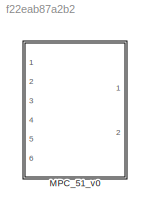
MODEL slx_f22eab87a2b2
KIND library
CONFIG AbsTol = auto
CONFIG EnableMultiTasking = off
CONFIG FixedStep = auto
CONFIG MaxStep = auto
CONFIG MinStep = auto
CONFIG RelTol = 1e-3
CONFIG SampleTimeConstraint = Unconstrained
CONFIG Solver = VariableStepAuto
CONFIG SolverName = VariableStepAuto
CONFIG StartTime = 0.0
CONFIG StopTime = 10.0
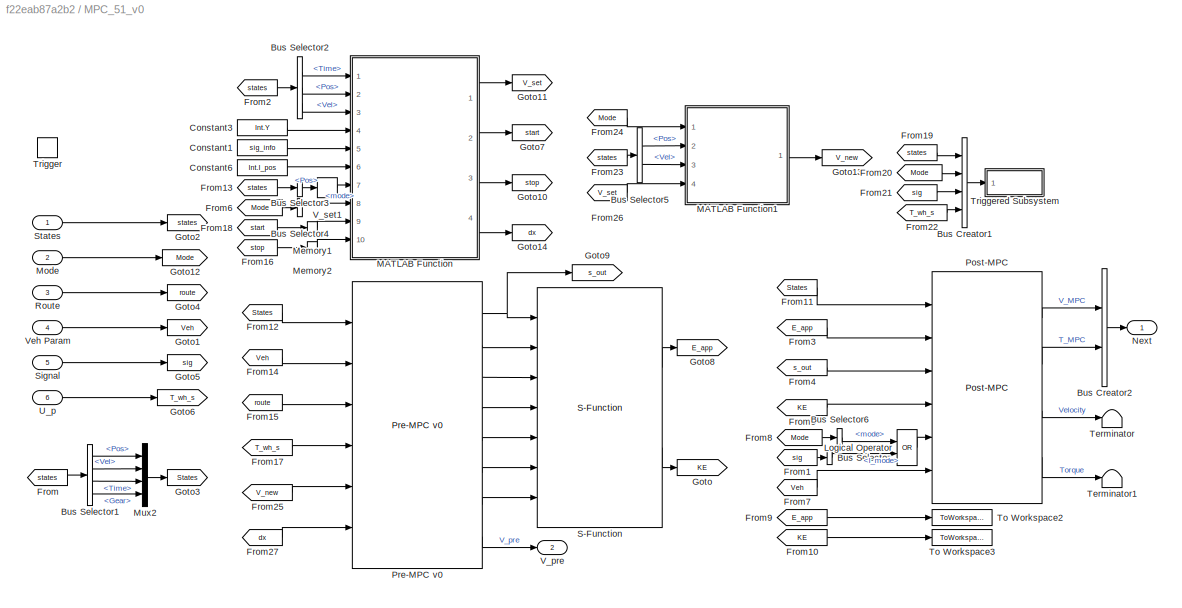
BLOCK [SubSystem] MPC_51_v0
  Ports = [6, 2, 0, 1]
  RequestExecContextInheritance = off
  TreatAsAtomicUnit = on
BLOCK [BusCreator] MPC_51_v0/Bus Creator1
  DisplayOption = bar
  InheritFromInputs = on
  Inputs = 4
  Ports = [4, 1]
BLOCK [BusCreator] MPC_51_v0/Bus Creator2
  DisplayOption = bar
  InheritFromInputs = on
  Inputs = 2
  Ports = [2, 1]
BLOCK [BusSelector] MPC_51_v0/Bus Selector
  OutputSignals = I_mode
  Ports = [1, 1]
BLOCK [BusSelector] MPC_51_v0/Bus Selector1
  OutputSignals = Pos,Vel,Time,Gear
  Ports = [1, 4]
BLOCK [BusSelector] MPC_51_v0/Bus Selector2
  OutputSignals = Time,Pos,Vel
  Ports = [1, 3]
BLOCK [BusSelector] MPC_51_v0/Bus Selector3
  OutputSignals = Pos
  Ports = [1, 1]
BLOCK [BusSelector] MPC_51_v0/Bus Selector4
  OutputSignals = mode
  Ports = [1, 1]
BLOCK [BusSelector] MPC_51_v0/Bus Selector5
  OutputSignals = Pos,Vel
  Ports = [1, 2]
BLOCK [BusSelector] MPC_51_v0/Bus Selector6
  OutputSignals = mode
  Ports = [1, 1]
BLOCK [Constant] MPC_51_v0/Constant1
  Value = sig_info
BLOCK [Constant] MPC_51_v0/Constant3
  Value = Int.Y
BLOCK [Constant] MPC_51_v0/Constant6
  Value = Int.I_pos
BLOCK [From] MPC_51_v0/From
  GotoTag = states
BLOCK [From] MPC_51_v0/From1
  GotoTag = sig
BLOCK [From] MPC_51_v0/From10
  GotoTag = KE
BLOCK [From] MPC_51_v0/From11
  GotoTag = States
BLOCK [From] MPC_51_v0/From12
  GotoTag = States
BLOCK [From] MPC_51_v0/From13
  GotoTag = states
BLOCK [From] MPC_51_v0/From14
  GotoTag = Veh
BLOCK [From] MPC_51_v0/From15
  GotoTag = route
BLOCK [From] MPC_51_v0/From16
  GotoTag = stop
BLOCK [From] MPC_51_v0/From17
  GotoTag = T_wh_s
BLOCK [From] MPC_51_v0/From18
  GotoTag = start
BLOCK [From] MPC_51_v0/From19
  GotoTag = states
BLOCK [From] MPC_51_v0/From2
  GotoTag = states
BLOCK [From] MPC_51_v0/From20
  GotoTag = Mode
BLOCK [From] MPC_51_v0/From21
  GotoTag = sig
BLOCK [From] MPC_51_v0/From22
  GotoTag = T_wh_s
BLOCK [From] MPC_51_v0/From23
  GotoTag = states
BLOCK [From] MPC_51_v0/From24
  GotoTag = Mode
BLOCK [From] MPC_51_v0/From25
  GotoTag = V_new
BLOCK [From] MPC_51_v0/From26
  GotoTag = V_set
BLOCK [From] MPC_51_v0/From27
  GotoTag = dx
BLOCK [From] MPC_51_v0/From3
  GotoTag = E_app
BLOCK [From] MPC_51_v0/From4
  GotoTag = s_out
BLOCK [From] MPC_51_v0/From5
  GotoTag = KE
BLOCK [From] MPC_51_v0/From6
  GotoTag = Mode
BLOCK [From] MPC_51_v0/From7
  GotoTag = Veh
BLOCK [From] MPC_51_v0/From8
  GotoTag = Mode
BLOCK [From] MPC_51_v0/From9
  GotoTag = E_app
BLOCK [Goto] MPC_51_v0/Goto
  GotoTag = KE
BLOCK [Goto] MPC_51_v0/Goto1
  GotoTag = Veh
BLOCK [Goto] MPC_51_v0/Goto10
  GotoTag = stop
BLOCK [Goto] MPC_51_v0/Goto11
  GotoTag = V_set
BLOCK [Goto] MPC_51_v0/Goto12
  GotoTag = Mode
BLOCK [Goto] MPC_51_v0/Goto13
  GotoTag = V_new
BLOCK [Goto] MPC_51_v0/Goto14
  GotoTag = dx
BLOCK [Goto] MPC_51_v0/Goto2
  GotoTag = states
BLOCK [Goto] MPC_51_v0/Goto3
  GotoTag = States
BLOCK [Goto] MPC_51_v0/Goto4
  GotoTag = route
BLOCK [Goto] MPC_51_v0/Goto5
  GotoTag = sig
BLOCK [Goto] MPC_51_v0/Goto6
  GotoTag = T_wh_s
BLOCK [Goto] MPC_51_v0/Goto7
  GotoTag = start
BLOCK [Goto] MPC_51_v0/Goto8
  GotoTag = E_app
BLOCK [Goto] MPC_51_v0/Goto9
  GotoTag = s_out
BLOCK [Logic] MPC_51_v0/Logical Operator
  AllPortsSameDT = off
  Operator = OR
  OutDataTypeStr = boolean
  Ports = [2, 1]
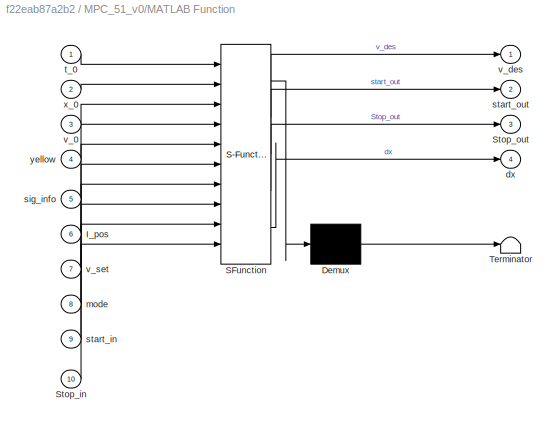
BLOCK [SubSystem] MPC_51_v0/MATLAB Function
  ErrorFcn = Stateflow.Translate.translate
  PermitHierarchicalResolution = ExplicitOnly
  Ports = [10, 4]
  RequestExecContextInheritance = off
  SFBlockType = MATLAB Function
  TreatAsAtomicUnit = on
BLOCK [Demux] MPC_51_v0/MATLAB Function/ Demux 
  Outputs = 1
  Ports = [1, 1]
BLOCK [S-Function] MPC_51_v0/MATLAB Function/ SFunction 
  EnableBusSupport = off
  FunctionName = sf_sfun
  PortCounts = [10 5]
  Ports = [10, 5]
  SFcnIsStateOwnerBlock = off
  SFunctionDeploymentMode = off
  Tag = Stateflow S-Function 2
BLOCK [Terminator] MPC_51_v0/MATLAB Function/ Terminator 
BLOCK [Inport] MPC_51_v0/MATLAB Function/I_pos
  Port = 6
BLOCK [Inport] MPC_51_v0/MATLAB Function/Stop_in
  Port = 10
BLOCK [Outport] MPC_51_v0/MATLAB Function/Stop_out
  Port = 3
BLOCK [Outport] MPC_51_v0/MATLAB Function/dx
  Port = 4
BLOCK [Inport] MPC_51_v0/MATLAB Function/mode
  Port = 8
BLOCK [Inport] MPC_51_v0/MATLAB Function/sig_info
  Port = 5
BLOCK [Inport] MPC_51_v0/MATLAB Function/start_in
  Port = 9
BLOCK [Outport] MPC_51_v0/MATLAB Function/start_out
  Port = 2
BLOCK [Inport] MPC_51_v0/MATLAB Function/t_0
BLOCK [Inport] MPC_51_v0/MATLAB Function/v_0
  Port = 3
BLOCK [Outport] MPC_51_v0/MATLAB Function/v_des
BLOCK [Inport] MPC_51_v0/MATLAB Function/v_set
  Port = 7
BLOCK [Inport] MPC_51_v0/MATLAB Function/x_0
  Port = 2
BLOCK [Inport] MPC_51_v0/MATLAB Function/yellow
  Port = 4
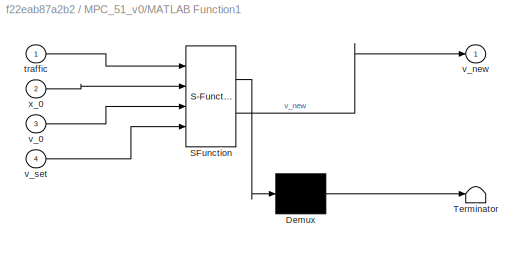
BLOCK [SubSystem] MPC_51_v0/MATLAB Function1
  ErrorFcn = Stateflow.Translate.translate
  PermitHierarchicalResolution = ExplicitOnly
  Ports = [4, 1]
  RequestExecContextInheritance = off
  SFBlockType = MATLAB Function
  TreatAsAtomicUnit = on
BLOCK [Demux] MPC_51_v0/MATLAB Function1/ Demux 
  Outputs = 1
  Ports = [1, 1]
BLOCK [S-Function] MPC_51_v0/MATLAB Function1/ SFunction 
  EnableBusSupport = off
  FunctionName = sf_sfun
  PortCounts = [4 2]
  Ports = [4, 2]
  SFcnIsStateOwnerBlock = off
  SFunctionDeploymentMode = off
  Tag = Stateflow S-Function 1
BLOCK [Terminator] MPC_51_v0/MATLAB Function1/ Terminator 
BLOCK [Inport] MPC_51_v0/MATLAB Function1/traffic
BLOCK [Inport] MPC_51_v0/MATLAB Function1/v_0
  Port = 3
BLOCK [Outport] MPC_51_v0/MATLAB Function1/v_new
BLOCK [Inport] MPC_51_v0/MATLAB Function1/v_set
  Port = 4
BLOCK [Inport] MPC_51_v0/MATLAB Function1/x_0
  Port = 2
BLOCK [Memory] MPC_51_v0/Memory1
  InheritSampleTime = on
  InitialCondition = [0 0]
BLOCK [Memory] MPC_51_v0/Memory2
  InheritSampleTime = on
BLOCK [Inport] MPC_51_v0/Mode
  Port = 2
BLOCK [Mux] MPC_51_v0/Mux2
  DisplayOption = bar
  Ports = [4, 1]
BLOCK [Outport] MPC_51_v0/Next
  VectorParamsAs1DForOutWhenUnconnected = off
BLOCK [Reference] MPC_51_v0/Post-MPC  REF=MPC_Sublibraries/Post-MPC
  Ports = [6, 4]
  SourceBlock = MPC_Sublibraries/Post-MPC
BLOCK [Reference] MPC_51_v0/Pre-MPC v0  REF=MPC_Sublibraries/Pre-MPC v0
  Ports = [6, 8]
  SourceBlock = MPC_Sublibraries/Pre-MPC v0
BLOCK [Inport] MPC_51_v0/Route
  Port = 3
BLOCK [Reference] MPC_51_v0/S-Function  REF=MPC_Sublibraries/S-Function
  Ports = [7, 2]
  SourceBlock = MPC_Sublibraries/S-Function
BLOCK [Inport] MPC_51_v0/Signal
  Port = 5
BLOCK [Inport] MPC_51_v0/States
BLOCK [Terminator] MPC_51_v0/Terminator
BLOCK [Terminator] MPC_51_v0/Terminator1
BLOCK [ToWorkspace] MPC_51_v0/To Workspace2
  FixptAsFi = on
  MaxDataPoints = inf
  Ports = [1]
  SampleTime = -1
  VariableName = E_app
BLOCK [ToWorkspace] MPC_51_v0/To Workspace3
  FixptAsFi = on
  MaxDataPoints = inf
  Ports = [1]
  SampleTime = -1
  VariableName = KE
BLOCK [TriggerPort] MPC_51_v0/Trigger
  Ports = []
  StatesWhenEnabling = held
  TriggerType = falling
  VariantControl = Variant
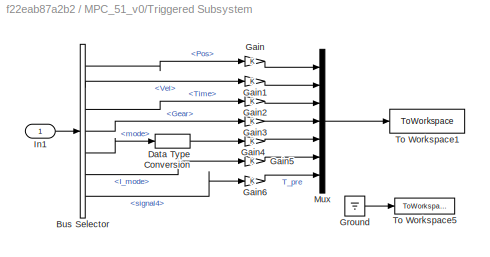
BLOCK [SubSystem] MPC_51_v0/Triggered Subsystem
  Ports = [1]
  RequestExecContextInheritance = off
  TreatAsAtomicUnit = on
BLOCK [BusSelector] MPC_51_v0/Triggered Subsystem/Bus Selector
  OutputSignals = signal1.Pos,signal1.Vel,signal1.Time,signal1.Gear,Traffic.mode,signal3.I_mode,signal4
  Ports = [1, 7]
BLOCK [DataTypeConversion] MPC_51_v0/Triggered Subsystem/Data Type Conversion
  OutDataTypeStr = double
  RndMeth = Floor
  SaturateOnIntegerOverflow = off
BLOCK [Gain] MPC_51_v0/Triggered Subsystem/Gain
BLOCK [Gain] MPC_51_v0/Triggered Subsystem/Gain1
BLOCK [Gain] MPC_51_v0/Triggered Subsystem/Gain2
BLOCK [Gain] MPC_51_v0/Triggered Subsystem/Gain3
BLOCK [Gain] MPC_51_v0/Triggered Subsystem/Gain4
BLOCK [Gain] MPC_51_v0/Triggered Subsystem/Gain5
BLOCK [Gain] MPC_51_v0/Triggered Subsystem/Gain6
BLOCK [Ground] MPC_51_v0/Triggered Subsystem/Ground
BLOCK [Inport] MPC_51_v0/Triggered Subsystem/In1
BLOCK [Mux] MPC_51_v0/Triggered Subsystem/Mux
  DisplayOption = bar
  Inputs = 7
  Ports = [7, 1]
BLOCK [ToWorkspace] MPC_51_v0/Triggered Subsystem/To Workspace1
  MaxDataPoints = inf
  Ports = [1]
  SampleTime = -1
  SaveFormat = Structure With Time
  VariableName = MPC_input
BLOCK [ToWorkspace] MPC_51_v0/Triggered Subsystem/To Workspace5
  MaxDataPoints = inf
  Ports = [1]
  SampleTime = -1
  VariableName = GP_out
BLOCK [Inport] MPC_51_v0/U_p
  Port = 6
BLOCK [Outport] MPC_51_v0/V_pre
  Port = 2
  VectorParamsAs1DForOutWhenUnconnected = off
BLOCK [Lookup_n-D] MPC_51_v0/V_set1
  BreakpointsForDimension1 = UNCC.X_vec
  ExtrapMethod = Clip
  InterpMethod = Flat
  NumberOfTableDimensions = 1
  Ports = [1, 1]
  Table = UNCC.V_lim
BLOCK [Inport] MPC_51_v0/Veh Param
  Port = 4
LINE MPC_51_v0/Bus Creator1:1 -> MPC_51_v0/Triggered Subsystem:1
LINE MPC_51_v0/Bus Creator2:1 -> MPC_51_v0/Next:1
LINE MPC_51_v0/Bus Selector1:1 -> MPC_51_v0/Mux2:1
LINE MPC_51_v0/Bus Selector1:2 -> MPC_51_v0/Mux2:2
LINE MPC_51_v0/Bus Selector1:3 -> MPC_51_v0/Mux2:3
LINE MPC_51_v0/Bus Selector1:4 -> MPC_51_v0/Mux2:4
LINE MPC_51_v0/Bus Selector2:1 -> MPC_51_v0/MATLAB Function:1
LINE MPC_51_v0/Bus Selector2:2 -> MPC_51_v0/MATLAB Function:2
LINE MPC_51_v0/Bus Selector2:3 -> MPC_51_v0/MATLAB Function:3
LINE MPC_51_v0/Bus Selector3:1 -> MPC_51_v0/V_set1:1
LINE MPC_51_v0/Bus Selector4:1 -> MPC_51_v0/MATLAB Function:8
LINE MPC_51_v0/Bus Selector5:1 -> MPC_51_v0/MATLAB Function1:2
LINE MPC_51_v0/Bus Selector5:2 -> MPC_51_v0/MATLAB Function1:3
LINE MPC_51_v0/Bus Selector6:1 -> MPC_51_v0/Logical Operator:1
LINE MPC_51_v0/Bus Selector:1 -> MPC_51_v0/Logical Operator:2
LINE MPC_51_v0/Constant1:1 -> MPC_51_v0/MATLAB Function:5
LINE MPC_51_v0/Constant3:1 -> MPC_51_v0/MATLAB Function:4
LINE MPC_51_v0/Constant6:1 -> MPC_51_v0/MATLAB Function:6
LINE MPC_51_v0/From10:1 -> MPC_51_v0/To Workspace3:1
LINE MPC_51_v0/From11:1 -> MPC_51_v0/Post-MPC:1
LINE MPC_51_v0/From12:1 -> MPC_51_v0/Pre-MPC v0:1
LINE MPC_51_v0/From13:1 -> MPC_51_v0/Bus Selector3:1
LINE MPC_51_v0/From14:1 -> MPC_51_v0/Pre-MPC v0:2
LINE MPC_51_v0/From15:1 -> MPC_51_v0/Pre-MPC v0:3
LINE MPC_51_v0/From16:1 -> MPC_51_v0/Memory2:1
LINE MPC_51_v0/From17:1 -> MPC_51_v0/Pre-MPC v0:4
LINE MPC_51_v0/From18:1 -> MPC_51_v0/Memory1:1
LINE MPC_51_v0/From19:1 -> MPC_51_v0/Bus Creator1:1
LINE MPC_51_v0/From1:1 -> MPC_51_v0/Bus Selector:1
LINE MPC_51_v0/From20:1 -> MPC_51_v0/Bus Creator1:2
LINE MPC_51_v0/From21:1 -> MPC_51_v0/Bus Creator1:3
LINE MPC_51_v0/From22:1 -> MPC_51_v0/Bus Creator1:4
LINE MPC_51_v0/From23:1 -> MPC_51_v0/Bus Selector5:1
LINE MPC_51_v0/From24:1 -> MPC_51_v0/MATLAB Function1:1
LINE MPC_51_v0/From25:1 -> MPC_51_v0/Pre-MPC v0:5
LINE MPC_51_v0/From26:1 -> MPC_51_v0/MATLAB Function1:4
LINE MPC_51_v0/From27:1 -> MPC_51_v0/Pre-MPC v0:6
LINE MPC_51_v0/From2:1 -> MPC_51_v0/Bus Selector2:1
LINE MPC_51_v0/From3:1 -> MPC_51_v0/Post-MPC:2
LINE MPC_51_v0/From4:1 -> MPC_51_v0/Post-MPC:3
LINE MPC_51_v0/From5:1 -> MPC_51_v0/Post-MPC:4
LINE MPC_51_v0/From6:1 -> MPC_51_v0/Bus Selector4:1
LINE MPC_51_v0/From7:1 -> MPC_51_v0/Post-MPC:6
LINE MPC_51_v0/From8:1 -> MPC_51_v0/Bus Selector6:1
LINE MPC_51_v0/From9:1 -> MPC_51_v0/To Workspace2:1
LINE MPC_51_v0/From:1 -> MPC_51_v0/Bus Selector1:1
LINE MPC_51_v0/Logical Operator:1 -> MPC_51_v0/Post-MPC:5
LINE MPC_51_v0/MATLAB Function1:1 -> MPC_51_v0/Goto13:1
LINE MPC_51_v0/MATLAB Function:1 -> MPC_51_v0/Goto11:1
LINE MPC_51_v0/MATLAB Function:2 -> MPC_51_v0/Goto7:1
LINE MPC_51_v0/MATLAB Function:3 -> MPC_51_v0/Goto10:1
LINE MPC_51_v0/MATLAB Function:4 -> MPC_51_v0/Goto14:1
LINE MPC_51_v0/Memory1:1 -> MPC_51_v0/MATLAB Function:9
LINE MPC_51_v0/Memory2:1 -> MPC_51_v0/MATLAB Function:10
LINE MPC_51_v0/Mode:1 -> MPC_51_v0/Goto12:1
LINE MPC_51_v0/Mux2:1 -> MPC_51_v0/Goto3:1
LINE MPC_51_v0/Post-MPC:1 -> MPC_51_v0/Bus Creator2:1
LINE MPC_51_v0/Post-MPC:2 -> MPC_51_v0/Bus Creator2:2
LINE MPC_51_v0/Post-MPC:3 -> MPC_51_v0/Terminator:1
LINE MPC_51_v0/Post-MPC:4 -> MPC_51_v0/Terminator1:1
NET MPC_51_v0/Pre-MPC v0:1 -> MPC_51_v0/Goto9:1, MPC_51_v0/S-Function:1
LINE MPC_51_v0/Pre-MPC v0:2 -> MPC_51_v0/S-Function:2
LINE MPC_51_v0/Pre-MPC v0:3 -> MPC_51_v0/S-Function:3
LINE MPC_51_v0/Pre-MPC v0:4 -> MPC_51_v0/S-Function:4
LINE MPC_51_v0/Pre-MPC v0:5 -> MPC_51_v0/S-Function:5
LINE MPC_51_v0/Pre-MPC v0:6 -> MPC_51_v0/S-Function:6
LINE MPC_51_v0/Pre-MPC v0:7 -> MPC_51_v0/S-Function:7
LINE MPC_51_v0/Pre-MPC v0:8 -> MPC_51_v0/V_pre:1
LINE MPC_51_v0/Route:1 -> MPC_51_v0/Goto4:1
LINE MPC_51_v0/S-Function:1 -> MPC_51_v0/Goto8:1
LINE MPC_51_v0/S-Function:2 -> MPC_51_v0/Goto:1
LINE MPC_51_v0/Signal:1 -> MPC_51_v0/Goto5:1
LINE MPC_51_v0/States:1 -> MPC_51_v0/Goto2:1
LINE MPC_51_v0/Triggered Subsystem/Bus Selector:1 -> MPC_51_v0/Triggered Subsystem/Gain:1
LINE MPC_51_v0/Triggered Subsystem/Bus Selector:2 -> MPC_51_v0/Triggered Subsystem/Gain1:1
LINE MPC_51_v0/Triggered Subsystem/Bus Selector:3 -> MPC_51_v0/Triggered Subsystem/Gain2:1
LINE MPC_51_v0/Triggered Subsystem/Bus Selector:4 -> MPC_51_v0/Triggered Subsystem/Gain3:1
LINE MPC_51_v0/Triggered Subsystem/Bus Selector:5 -> MPC_51_v0/Triggered Subsystem/Data Type Conversion:1
LINE MPC_51_v0/Triggered Subsystem/Bus Selector:6 -> MPC_51_v0/Triggered Subsystem/Gain5:1
LINE MPC_51_v0/Triggered Subsystem/Bus Selector:7 -> MPC_51_v0/Triggered Subsystem/Gain6:1
LINE MPC_51_v0/Triggered Subsystem/Data Type Conversion:1 -> MPC_51_v0/Triggered Subsystem/Gain4:1
LINE MPC_51_v0/Triggered Subsystem/Gain1:1 -> MPC_51_v0/Triggered Subsystem/Mux:2
LINE MPC_51_v0/Triggered Subsystem/Gain2:1 -> MPC_51_v0/Triggered Subsystem/Mux:3
LINE MPC_51_v0/Triggered Subsystem/Gain3:1 -> MPC_51_v0/Triggered Subsystem/Mux:4
LINE MPC_51_v0/Triggered Subsystem/Gain4:1 -> MPC_51_v0/Triggered Subsystem/Mux:5
LINE MPC_51_v0/Triggered Subsystem/Gain5:1 -> MPC_51_v0/Triggered Subsystem/Mux:6
LINE MPC_51_v0/Triggered Subsystem/Gain6:1 -> MPC_51_v0/Triggered Subsystem/Mux:7
LINE MPC_51_v0/Triggered Subsystem/Gain:1 -> MPC_51_v0/Triggered Subsystem/Mux:1
LINE MPC_51_v0/Triggered Subsystem/Ground:1 -> MPC_51_v0/Triggered Subsystem/To Workspace5:1
LINE MPC_51_v0/Triggered Subsystem/In1:1 -> MPC_51_v0/Triggered Subsystem/Bus Selector:1
LINE MPC_51_v0/Triggered Subsystem/Mux:1 -> MPC_51_v0/Triggered Subsystem/To Workspace1:1
LINE MPC_51_v0/U_p:1 -> MPC_51_v0/Goto6:1
LINE MPC_51_v0/V_set1:1 -> MPC_51_v0/MATLAB Function:7
LINE MPC_51_v0/Veh Param:1 -> MPC_51_v0/Goto1:1
note: NET lines group one-source signal fan-out (src -> all destinations, sorted); 1:1 wires keep LINE
CHART MPC_51_v0/MATLAB Function1 states=1 transitions=1
  STATE_LABEL 'eML_blk_kernel()'
  STATE_LABEL 'SCRIPT:\nfunction v_new  = fcn(traffic,x_0,v_0,v_set)\n\ntau = 0.75;                 %   s - Driver reaction time\na_n = 2;                    %   m/s^2 - Maximum acceleration\nb_n = -2*a_n;               %   m/s^2 - Maximum brake acceleration\nb_hat = -2;                 %   m/s^2 - Estimated lead vehicle brake acceleration\nt_n = 2;                    %   s - Safe following time\n\nx_lead = traffic(1);  ...<+654ch>'
CHART MPC_51_v0/MATLAB Function states=1 transitions=1
  STATE_LABEL 'eML_blk_kernel()'
  STATE_LABEL 'SCRIPT:\nfunction [v_des,start_out,Stop_out,dx] = fcn(t_0,x_0,v_0,yellow,sig_info,I_pos,v_set,mode,start_in,Stop_in)\n\nG = sig_info(:,:,2);                                    %   s - Intersection green phases \nCs = sig_info(:,:,3);                                   %   s - Cycle start times \nwindow = 250;                                           %   m - Driver sight range\ndt = .01;                 ...<+1888ch>'
CHART  states=0 transitions=0
CHART  states=0 transitions=0
